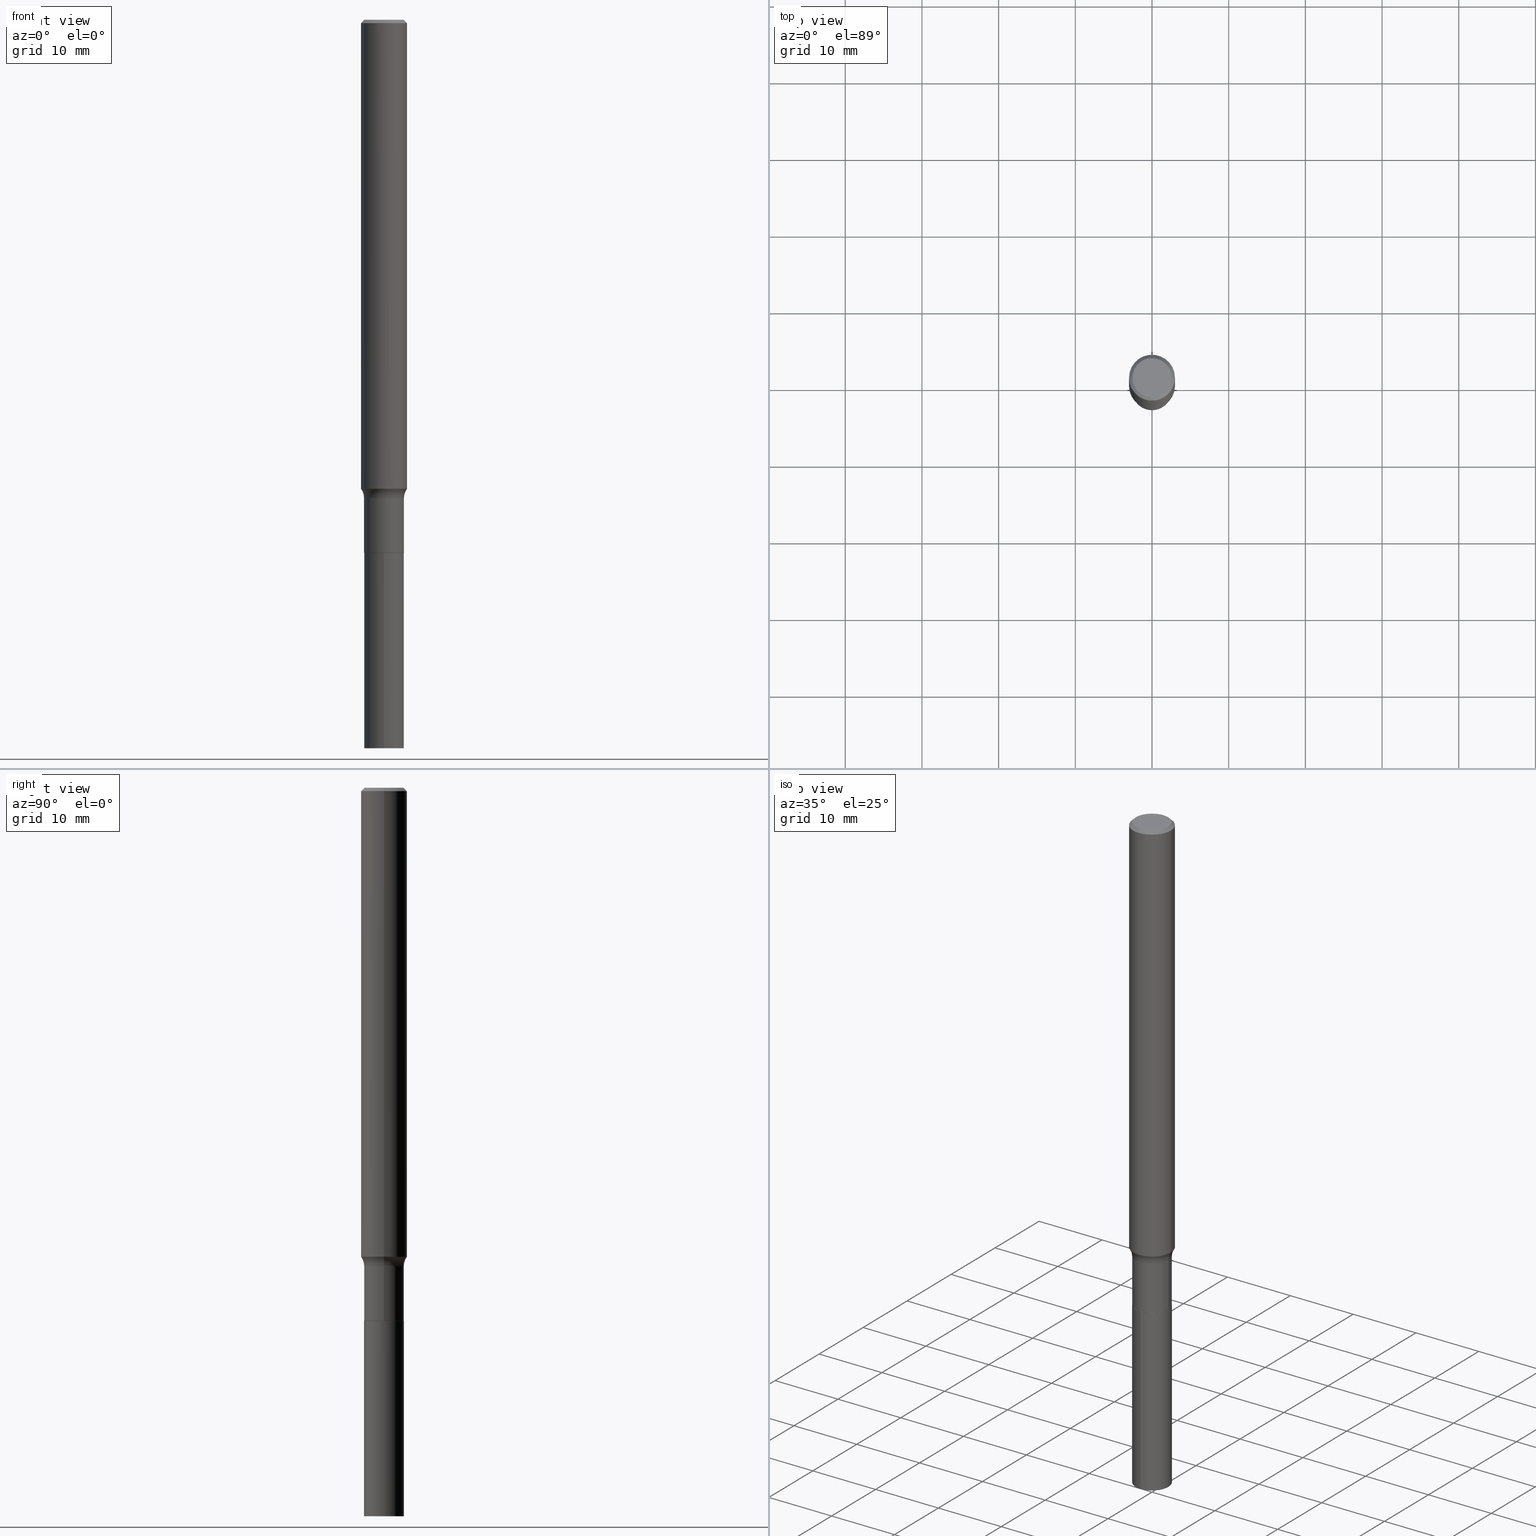
[diagram: canonical four-view strip — front | top / right | iso, engineering-drawing reading convention]
A machine part, canonical four-view strip (front | top / right | iso — engineering-drawing reading convention). The complete STEP part file that produces these views, byte-faithful:
ISO-10303-21;
HEADER;
FILE_DESCRIPTION (( 'STEP AP203' ),
    '1' );
FILE_NAME ('67838.STEP',
    '2024-04-19T16:38:54',
    ( '' ),
    ( '' ),
    'SwSTEP 2.0',
    'SolidWorks 2023',
    '' );
FILE_SCHEMA (( 'CONFIG_CONTROL_DESIGN' ));
ENDSEC;

DATA;
#1 = ORIENTED_EDGE ( 'NONE', *, *, #144, .F. ) ;
#2 = DIRECTION ( 'NONE',  ( 1.000000000000000000, -6.982962677686264344E-15, 4.883557194083111780E-29 ) ) ;
#3 = ORIENTED_EDGE ( 'NONE', *, *, #331, .F. ) ;
#4 = APPROVAL_PERSON_ORGANIZATION ( #448, #68, #65 ) ;
#5 = AXIS2_PLACEMENT_3D ( 'NONE', #61, #283, #91 ) ;
#6 = CONICAL_SURFACE ( 'NONE', #377, 0.1018499999999999961, 0.7853981633972775267 ) ;
#7 = CARTESIAN_POINT ( 'NONE',  ( -0.1181000000000001632, 8.391509709326794790E-16, -5.809262341591051491E-30 ) ) ;
#8 = ORIENTED_EDGE ( 'NONE', *, *, #239, .F. ) ;
#9 = DIRECTION ( 'NONE',  ( -6.982962677686266711E-15, -1.000000000000000000, 3.491481338843145583E-15 ) ) ;
#10 = ORIENTED_EDGE ( 'NONE', *, *, #106, .T. ) ;
#11 = EDGE_CURVE ( 'NONE', #125, #241, #262, .T. ) ;
#12 = COORDINATED_UNIVERSAL_TIME_OFFSET ( 5, 0, .BEHIND. ) ;
#13 = FACE_OUTER_BOUND ( 'NONE', #187, .T. ) ;
#14 = AXIS2_PLACEMENT_3D ( 'NONE', #129, #162, #308 ) ;
#15 = DATE_AND_TIME ( #135, #404 ) ;
#16 = FACE_OUTER_BOUND ( 'NONE', #48, .T. ) ;
#17 = SECURITY_CLASSIFICATION_LEVEL ( 'unclassified' ) ;
#18 = CARTESIAN_POINT ( 'NONE',  ( 0.1023499999999999688, -9.288038657590533619E-15, -2.455500000000000238 ) ) ;
#19 = EDGE_CURVE ( 'NONE', #412, #78, #111, .T. ) ;
#20 = DIRECTION ( 'NONE',  ( -6.982962677686265922E-15, -1.000000000000000000, 5.338247178630704739E-15 ) ) ;
#21 = ORIENTED_EDGE ( 'NONE', *, *, #144, .T. ) ;
#22 = AXIS2_PLACEMENT_3D ( 'NONE', #218, #182, #209 ) ;
#23 = CARTESIAN_POINT ( 'NONE',  ( 0.1023499999999999965, -1.026635172873438366E-14, -2.735700000000000021 ) ) ;
#24 = ORIENTED_EDGE ( 'NONE', *, *, #193, .T. ) ;
#25 = DIRECTION ( 'NONE',  ( 1.000000000000000000, -6.982962677686270655E-15, 0.000000000000000000 ) ) ;
#26 = DIRECTION ( 'NONE',  ( -2.445468806185136597E-29, 3.491481338843145583E-15, 1.000000000000000000 ) ) ;
#27 = CYLINDRICAL_SURFACE ( 'NONE', #84, 0.1181000000000001632 ) ;
#28 = VECTOR ( 'NONE', #232, 39.37007874015748143 ) ;
#29 = CARTESIAN_POINT ( 'NONE',  ( 0.000000000000000000, 0.000000000000000000, 0.000000000000000000 ) ) ;
#30 = EDGE_CURVE ( 'NONE', #364, #227, #327, .T. ) ;
#31 = CARTESIAN_POINT ( 'NONE',  ( -7.147062300611223431E-16, -0.1023500000000095583, -2.736199999999999743 ) ) ;
#32 = ORIENTED_EDGE ( 'NONE', *, *, #19, .T. ) ;
#33 = CC_DESIGN_DATE_AND_TIME_ASSIGNMENT ( #15, #282, ( #340 ) ) ;
#34 = DIRECTION ( 'NONE',  ( 1.000000000000000000, -6.982962677686261977E-15, 0.000000000000000000 ) ) ;
#35 = VECTOR ( 'NONE', #200, 39.37007874015748143 ) ;
#36 = ADVANCED_FACE ( 'NONE', ( #442 ), #220, .F. ) ;
#37 = CARTESIAN_POINT ( 'NONE',  ( -0.1180999999999999966, 7.628363003171413738E-16, -0.01771500000000010219 ) ) ;
#38 = EDGE_CURVE ( 'NONE', #105, #101, #296, .T. ) ;
#39 = DIRECTION ( 'NONE',  ( 0.7071067811865456854, -7.319954787623249734E-15, -0.7071067811865493491 ) ) ;
#40 = ORIENTED_EDGE ( 'NONE', *, *, #215, .F. ) ;
#41 = DIRECTION ( 'NONE',  ( -2.445468806185136597E-29, 3.491481338843145583E-15, 1.000000000000000000 ) ) ;
#42 = AXIS2_PLACEMENT_3D ( 'NONE', #260, #9, #299 ) ;
#43 = ADVANCED_FACE ( 'NONE', ( #13 ), #219, .T. ) ;
#44 = ORIENTED_EDGE ( 'NONE', *, *, #286, .T. ) ;
#45 = CIRCLE ( 'NONE', #171, 0.1181000000000003158 ) ;
#46 = AXIS2_PLACEMENT_3D ( 'NONE', #288, #426, #145 ) ;
#47 = CARTESIAN_POINT ( 'NONE',  ( -7.147062300610980856E-16, -0.1023500000000130833, -3.740200000000000191 ) ) ;
#48 = EDGE_LOOP ( 'NONE', ( #143, #336, #223, #360 ) ) ;
#49 = CC_DESIGN_PERSON_AND_ORGANIZATION_ASSIGNMENT ( #60, #378, ( #312 ) ) ;
#50 = VERTEX_POINT ( 'NONE', #80 ) ;
#51 = ORIENTED_EDGE ( 'NONE', *, *, #290, .F. ) ;
#52 = CARTESIAN_POINT ( 'NONE',  ( 4.332147990156994992E-31, -6.185159191760669162E-17, -0.01771500000000010219 ) ) ;
#53 = ORIENTED_EDGE ( 'NONE', *, *, #249, .F. ) ;
#54 = AXIS2_PLACEMENT_3D ( 'NONE', #107, #465, #250 ) ;
#55 = AXIS2_PLACEMENT_3D ( 'NONE', #275, #240, #379 ) ;
#56 = EDGE_CURVE ( 'NONE', #140, #403, #152, .T. ) ;
#57 = DIRECTION ( 'NONE',  ( 1.000000000000000000, -6.982962677686274599E-15, 0.000000000000000000 ) ) ;
#58 = DIRECTION ( 'NONE',  ( -2.445468806185136597E-29, 3.491481338843145583E-15, 1.000000000000000000 ) ) ;
#59 = ADVANCED_FACE ( 'NONE', ( #225 ), #358, .F. ) ;
#60 = PERSON_AND_ORGANIZATION ( #256, #365 ) ;
#61 = CARTESIAN_POINT ( 'NONE',  ( 6.004848653587603460E-29, -8.573332427529345603E-15, -2.455500000000000238 ) ) ;
#62 = ORIENTED_EDGE ( 'NONE', *, *, #130, .T. ) ;
#63 = EDGE_CURVE ( 'NONE', #364, #140, #366, .T. ) ;
#64 = LOCAL_TIME ( 12, 38, 54.00000000000000000, #458 ) ;
#65 = APPROVAL_ROLE ( '' ) ;
#66 = AXIS2_PLACEMENT_3D ( 'NONE', #272, #100, #316 ) ;
#67 = DIRECTION ( 'NONE',  ( 2.445468806185136597E-29, -3.491481338843145583E-15, -1.000000000000000000 ) ) ;
#68 = APPROVAL ( #95, 'UNSPECIFIED' ) ;
#69 = DIRECTION ( 'NONE',  ( 1.000000000000000000, -6.982962677686267499E-15, 4.876176775795936353E-29 ) ) ;
#70 = CARTESIAN_POINT ( 'NONE',  ( -0.1180999999999999966, -3.395230579436365239E-15, -0.01771500000000010219 ) ) ;
#71 = ORIENTED_EDGE ( 'NONE', *, *, #294, .T. ) ;
#72 = CARTESIAN_POINT ( 'NONE',  ( 7.272404900505293716E-16, 0.1023499999999904347, -2.736200000000000632 ) ) ;
#73 = EDGE_CURVE ( 'NONE', #396, #403, #189, .T. ) ;
#74 = FACE_OUTER_BOUND ( 'NONE', #90, .T. ) ;
#75 = CARTESIAN_POINT ( 'NONE',  ( 7.015701749847187307E-46, -1.001656274515824970E-31, -2.868857591682589212E-17 ) ) ;
#76 = CARTESIAN_POINT ( 'NONE',  ( 0.000000000000000000, 0.000000000000000000, 0.000000000000000000 ) ) ;
#77 = DIRECTION ( 'NONE',  ( -2.438872900097953269E-29, 3.500927051775652151E-15, 1.000000000000000000 ) ) ;
#78 = VERTEX_POINT ( 'NONE', #47 ) ;
#79 = APPROVAL_STATUS ( 'not_yet_approved' ) ;
#80 = CARTESIAN_POINT ( 'NONE',  ( 0.1018499999999999961, -1.026460598806496295E-14, -2.736200000000000188 ) ) ;
#81 = APPROVAL_ROLE ( '' ) ;
#82 = DIRECTION ( 'NONE',  ( -2.445468806185136877E-29, 3.491481338843145188E-15, 1.000000000000000000 ) ) ;
#83 = TOROIDAL_SURFACE ( 'NONE', #278, 0.1823499999999999566, 0.08000000000000002942 ) ;
#84 = AXIS2_PLACEMENT_3D ( 'NONE', #257, #428, #69 ) ;
#85 = DATE_AND_TIME ( #268, #173 ) ;
#86 = CARTESIAN_POINT ( 'NONE',  ( 9.139920139182118548E-29, -1.306832199932537301E-14, -3.740200000000000635 ) ) ;
#87 = PERSON_AND_ORGANIZATION ( #256, #365 ) ;
#88 = DIRECTION ( 'NONE',  ( -1.000000000000000000, 6.982962677686266711E-15, 0.000000000000000000 ) ) ;
#89 = APPLICATION_CONTEXT ( 'configuration controlled 3d designs of mechanical parts and assemblies' ) ;
#90 = EDGE_LOOP ( 'NONE', ( #334, #8, #246, #21 ) ) ;
#91 = DIRECTION ( 'NONE',  ( 1.000000000000000000, -6.982962677686262766E-15, 0.000000000000000000 ) ) ;
#92 = CIRCLE ( 'NONE', #5, 0.1023499999999999688 ) ;
#93 = CARTESIAN_POINT ( 'NONE',  ( 5.888285760676931811E-29, -8.406911508820488562E-15, -2.407835154463693339 ) ) ;
#94 = ORIENTED_EDGE ( 'NONE', *, *, #407, .F. ) ;
#95 = APPROVAL_STATUS ( 'not_yet_approved' ) ;
#96 = DIRECTION ( 'NONE',  ( -2.445468806185136877E-29, 3.491481338843145188E-15, 1.000000000000000000 ) ) ;
#97 = ADVANCED_FACE ( 'NONE', ( #120 ), #344, .T. ) ;
#98 = EDGE_LOOP ( 'NONE', ( #284, #32, #24, #40 ) ) ;
#99 = PRODUCT_DEFINITION_SHAPE ( 'NONE', 'NONE',  #340 ) ;
#100 = DIRECTION ( 'NONE',  ( -2.445468806185136597E-29, 3.491481338843145583E-15, 1.000000000000000000 ) ) ;
#101 = VERTEX_POINT ( 'NONE', #421 ) ;
#102 = AXIS2_PLACEMENT_3D ( 'NONE', #174, #58, #57 ) ;
#103 = CARTESIAN_POINT ( 'NONE',  ( 0.1003850000000000159, -7.803837484803599345E-16, -2.868857591682071522E-17 ) ) ;
#104 = LINE ( 'NONE', #139, #206 ) ;
#105 = VERTEX_POINT ( 'NONE', #234 ) ;
#106 = EDGE_CURVE ( 'NONE', #105, #125, #318, .T. ) ;
#107 = CARTESIAN_POINT ( 'NONE',  ( 9.139920139182118548E-29, -1.306832199932537301E-14, -3.740200000000000635 ) ) ;
#108 = AXIS2_PLACEMENT_3D ( 'NONE', #441, #468, #295 ) ;
#109 = PRODUCT_RELATED_PRODUCT_CATEGORY ( 'detail', '', ( #210 ) ) ;
#110 = CYLINDRICAL_SURFACE ( 'NONE', #349, 0.1181000000000001632 ) ;
#111 = CIRCLE ( 'NONE', #462, 0.1023500000000000243 ) ;
#112 = CIRCLE ( 'NONE', #42, 0.08000000000000002942 ) ;
#113 = DIRECTION ( 'NONE',  ( -2.438872900097953269E-29, 3.500927051775652151E-15, 1.000000000000000000 ) ) ;
#114 = CARTESIAN_POINT ( 'NONE',  ( 0.1180999999999999966, -8.720764054544245267E-16, -0.01771500000000010219 ) ) ;
#115 = VECTOR ( 'NONE', #157, 39.37007874015748143 ) ;
#116 = PERSON_AND_ORGANIZATION_ROLE ( 'design_owner' ) ;
#117 = ORIENTED_EDGE ( 'NONE', *, *, #193, .F. ) ;
#118 = EDGE_CURVE ( 'NONE', #158, #105, #411, .T. ) ;
#119 = LENGTH_MEASURE_WITH_UNIT ( LENGTH_MEASURE( 0.02539999999999999897 ), #436 );
#120 = FACE_OUTER_BOUND ( 'NONE', #394, .T. ) ;
#121 = ORIENTED_EDGE ( 'NONE', *, *, #118, .F. ) ;
#122 = CC_DESIGN_PERSON_AND_ORGANIZATION_ASSIGNMENT ( #87, #417, ( #340 ) ) ;
#123 = VERTEX_POINT ( 'NONE', #313 ) ;
#124 = CIRCLE ( 'NONE', #453, 0.08000000000000002942 ) ;
#125 = VERTEX_POINT ( 'NONE', #23 ) ;
#126 = EDGE_CURVE ( 'NONE', #125, #105, #190, .T. ) ;
#127 = EDGE_LOOP ( 'NONE', ( #51, #385 ) ) ;
#128 = SHAPE_DEFINITION_REPRESENTATION ( #99, #172 ) ;
#129 = CARTESIAN_POINT ( 'NONE',  ( 4.332147990156994992E-31, -6.185159191760669162E-17, -0.01771500000000010219 ) ) ;
#130 = EDGE_CURVE ( 'NONE', #307, #227, #416, .T. ) ;
#131 = CARTESIAN_POINT ( 'NONE',  ( 6.690069013080677573E-29, -9.551645498673194068E-15, -2.735700000000000021 ) ) ;
#132 = EDGE_LOOP ( 'NONE', ( #330, #10, #235, #94 ) ) ;
#133 = UNCERTAINTY_MEASURE_WITH_UNIT (LENGTH_MEASURE( 1.000000000000000082E-05 ), #361, 'distance_accuracy_value', 'NONE');
#134 = AXIS2_PLACEMENT_3D ( 'NONE', #451, #136, #459 ) ;
#135 = CALENDAR_DATE ( 2024, 19, 4 ) ;
#136 = DIRECTION ( 'NONE',  ( 2.438872900097952989E-29, -3.500927051775652151E-15, -1.000000000000000000 ) ) ;
#137 = CALENDAR_DATE ( 2024, 19, 4 ) ;
#138 = CARTESIAN_POINT ( 'NONE',  ( 0.1181000000000001632, -8.246878922347493473E-16, 5.758764772215008848E-30 ) ) ;
#139 = CARTESIAN_POINT ( 'NONE',  ( 0.1018499999999999961, -1.026460598806496295E-14, -2.736200000000000188 ) ) ;
#140 = VERTEX_POINT ( 'NONE', #456 ) ;
#141 = AXIS2_PLACEMENT_3D ( 'NONE', #362, #373, #449 ) ;
#142 = CYLINDRICAL_SURFACE ( 'NONE', #46, 0.1023499999999999827 ) ;
#143 = ORIENTED_EDGE ( 'NONE', *, *, #30, .F. ) ;
#144 = EDGE_CURVE ( 'NONE', #241, #101, #92, .T. ) ;
#145 = DIRECTION ( 'NONE',  ( 1.000000000000000000, -6.982962677686266711E-15, 4.876176775795936353E-29 ) ) ;
#146 = APPROVAL ( #79, 'UNSPECIFIED' ) ;
#147 = FACE_OUTER_BOUND ( 'NONE', #192, .T. ) ;
#148 = CC_DESIGN_APPROVAL ( #146, ( #340 ) ) ;
#149 = DIRECTION ( 'NONE',  ( 7.105427357601001859E-15, 1.000000000000000000, -3.491481338843145583E-15 ) ) ;
#150 = EDGE_LOOP ( 'NONE', ( #251, #71, #62, #266 ) ) ;
#151 = LOCAL_TIME ( 12, 38, 54.00000000000000000, #236 ) ;
#152 = LINE ( 'NONE', #37, #28 ) ;
#153 = AXIS2_PLACEMENT_3D ( 'NONE', #305, #333, #265 ) ;
#154 = EDGE_CURVE ( 'NONE', #50, #158, #314, .T. ) ;
#155 = ORIENTED_EDGE ( 'NONE', *, *, #154, .F. ) ;
#156 = EDGE_LOOP ( 'NONE', ( #447, #166, #463, #184 ) ) ;
#157 = DIRECTION ( 'NONE',  ( -2.445468806185136877E-29, 3.491481338843145188E-15, 1.000000000000000000 ) ) ;
#158 = VERTEX_POINT ( 'NONE', #338 ) ;
#159 = APPROVAL_DATE_TIME ( #335, #68 ) ;
#160 = CARTESIAN_POINT ( 'NONE',  ( 0.1023499999999999827, -7.147062300611892976E-16, 4.990766930027139796E-30 ) ) ;
#161 = CONICAL_SURFACE ( 'NONE', #375, 0.1180999999999999966, 0.7853981633974457255 ) ;
#162 = DIRECTION ( 'NONE',  ( -2.445468806185136597E-29, 3.491481338843145583E-15, 1.000000000000000000 ) ) ;
#163 = CC_DESIGN_PERSON_AND_ORGANIZATION_ASSIGNMENT ( #439, #116, ( #210 ) ) ;
#164 = DATE_AND_TIME ( #137, #151 ) ;
#165 = DIRECTION ( 'NONE',  ( -6.982962677686265922E-15, -1.000000000000000000, 5.338247178630704739E-15 ) ) ;
#166 = ORIENTED_EDGE ( 'NONE', *, *, #363, .T. ) ;
#167 = APPROVAL_DATE_TIME ( #164, #410 ) ;
#168 = DIRECTION ( 'NONE',  ( 2.445468806185136597E-29, -3.491481338843145583E-15, -1.000000000000000000 ) ) ;
#169 = EDGE_LOOP ( 'NONE', ( #359, #371 ) ) ;
#170 = VECTOR ( 'NONE', #113, 39.37007874015748143 ) ;
#171 = AXIS2_PLACEMENT_3D ( 'NONE', #423, #432, #34 ) ;
#172 = ADVANCED_BREP_SHAPE_REPRESENTATION ( '67838', ( #201, #433, #343 ), #368 ) ;
#173 = LOCAL_TIME ( 12, 38, 54.00000000000000000, #444 ) ;
#174 = CARTESIAN_POINT ( 'NONE',  ( 6.691291747483770374E-29, -9.553391239342616361E-15, -2.736200000000000188 ) ) ;
#175 = FACE_OUTER_BOUND ( 'NONE', #208, .T. ) ;
#176 = DIRECTION ( 'NONE',  ( 1.000000000000000000, -6.982962677686266711E-15, 4.875668750515085695E-29 ) ) ;
#177 = AXIS2_PLACEMENT_3D ( 'NONE', #52, #168, #342 ) ;
#178 = CC_DESIGN_SECURITY_CLASSIFICATION ( #267, ( #312 ) ) ;
#179 = DIRECTION ( 'NONE',  ( -2.445468806185136597E-29, 3.491481338843145583E-15, 1.000000000000000000 ) ) ;
#180 = PLANE ( 'NONE',  #293 ) ;
#181 = ORIENTED_EDGE ( 'NONE', *, *, #118, .T. ) ;
#182 = DIRECTION ( 'NONE',  ( -2.445468806185136597E-29, 3.491481338843145583E-15, 1.000000000000000000 ) ) ;
#183 = VECTOR ( 'NONE', #82, 39.37007874015748143 ) ;
#184 = ORIENTED_EDGE ( 'NONE', *, *, #434, .F. ) ;
#185 = CARTESIAN_POINT ( 'NONE',  ( -0.1023499999999999827, 7.272404900504624170E-16, -5.034530064875895945E-30 ) ) ;
#186 = ADVANCED_FACE ( 'NONE', ( #175 ), #271, .F. ) ;
#187 = EDGE_LOOP ( 'NONE', ( #263, #181, #354, #3 ) ) ;
#188 = MECHANICAL_CONTEXT ( 'NONE', #89, 'mechanical' ) ;
#189 = LINE ( 'NONE', #7, #351 ) ;
#190 = CIRCLE ( 'NONE', #405, 0.1023499999999999965 ) ;
#191 = ORIENTED_EDGE ( 'NONE', *, *, #331, .T. ) ;
#192 = EDGE_LOOP ( 'NONE', ( #302, #196, #1, #226 ) ) ;
#193 = EDGE_CURVE ( 'NONE', #78, #303, #409, .T. ) ;
#194 = DIRECTION ( 'NONE',  ( 0.000000000000000000, 0.000000000000000000, 1.000000000000000000 ) ) ;
#195 = DIRECTION ( 'NONE',  ( 1.000000000000000000, -6.982962677686274599E-15, 0.000000000000000000 ) ) ;
#196 = ORIENTED_EDGE ( 'NONE', *, *, #38, .T. ) ;
#197 = FACE_OUTER_BOUND ( 'NONE', #98, .T. ) ;
#198 = ORIENTED_EDGE ( 'NONE', *, *, #445, .F. ) ;
#199 = AXIS2_PLACEMENT_3D ( 'NONE', #93, #280, #376 ) ;
#200 = DIRECTION ( 'NONE',  ( -2.438872900097953269E-29, 3.500927051775652151E-15, 1.000000000000000000 ) ) ;
#201 = MANIFOLD_SOLID_BREP ( 'Body-Move/Copy2[1]', #261 ) ;
#202 = CARTESIAN_POINT ( 'NONE',  ( 6.691291747483770374E-29, -9.553391239342616361E-15, -2.736200000000000188 ) ) ;
#203 = APPROVAL_ROLE ( '' ) ;
#204 = FACE_OUTER_BOUND ( 'NONE', #150, .T. ) ;
#205 = ORIENTED_EDGE ( 'NONE', *, *, #445, .T. ) ;
#206 = VECTOR ( 'NONE', #461, 39.37007874015748143 ) ;
#207 = DIRECTION ( 'NONE',  ( -2.438872900097953269E-29, 3.500927051775652151E-15, 1.000000000000000000 ) ) ;
#208 = EDGE_LOOP ( 'NONE', ( #391, #281 ) ) ;
#209 = DIRECTION ( 'NONE',  ( 1.000000000000000000, -6.982962677686274599E-15, 0.000000000000000000 ) ) ;
#210 = PRODUCT ( '67838', '67838', '', ( #188 ) ) ;
#211 = DIRECTION ( 'NONE',  ( -2.445468806185136597E-29, 3.491481338843145583E-15, 1.000000000000000000 ) ) ;
#212 = EDGE_LOOP ( 'NONE', ( #155, #298 ) ) ;
#213 = CC_DESIGN_APPROVAL ( #68, ( #312 ) ) ;
#214 = CARTESIAN_POINT ( 'NONE',  ( 6.004848653587603460E-29, -8.573332427529345603E-15, -2.455500000000000238 ) ) ;
#215 = EDGE_CURVE ( 'NONE', #123, #303, #306, .T. ) ;
#216 = APPLICATION_CONTEXT ( 'configuration controlled 3d designs of mechanical parts and assemblies' ) ;
#217 = ADVANCED_FACE ( 'NONE', ( #16 ), #161, .T. ) ;
#218 = CARTESIAN_POINT ( 'NONE',  ( 6.691291747483770374E-29, -9.553391239342616361E-15, -2.736200000000000188 ) ) ;
#219 = CONICAL_SURFACE ( 'NONE', #415, 0.1018499999999999961, 0.7853981633972775267 ) ;
#220 = PLANE ( 'NONE',  #153 ) ;
#221 = ADVANCED_FACE ( 'NONE', ( #197 ), #452, .T. ) ;
#222 = APPLICATION_PROTOCOL_DEFINITION ( 'international standard', 'config_control_design', 1994, #89 ) ;
#223 = ORIENTED_EDGE ( 'NONE', *, *, #56, .T. ) ;
#224 = ORIENTED_EDGE ( 'NONE', *, *, #56, .F. ) ;
#225 = FACE_OUTER_BOUND ( 'NONE', #169, .T. ) ;
#226 = ORIENTED_EDGE ( 'NONE', *, *, #11, .F. ) ;
#227 = VERTEX_POINT ( 'NONE', #237 ) ;
#228 = AXIS2_PLACEMENT_3D ( 'NONE', #325, #291, #285 ) ;
#229 = ADVANCED_FACE ( 'NONE', ( #310 ), #287, .T. ) ;
#230 = ORIENTED_EDGE ( 'NONE', *, *, #30, .T. ) ;
#231 = DIRECTION ( 'NONE',  ( -2.445468806185136597E-29, 3.491481338843145583E-15, 1.000000000000000000 ) ) ;
#232 = DIRECTION ( 'NONE',  ( -0.7071067811865456854, 2.468850131082237733E-15, -0.7071067811865493491 ) ) ;
#233 = EDGE_CURVE ( 'NONE', #403, #227, #389, .T. ) ;
#234 = CARTESIAN_POINT ( 'NONE',  ( -0.1023499999999999965, -8.335248473050806926E-15, -2.735700000000000021 ) ) ;
#235 = ORIENTED_EDGE ( 'NONE', *, *, #11, .T. ) ;
#236 = COORDINATED_UNIVERSAL_TIME_OFFSET ( 5, 0, .BEHIND. ) ;
#237 = CARTESIAN_POINT ( 'NONE',  ( 0.1180999999999999966, -8.865394841523547570E-16, -0.01771500000000010219 ) ) ;
#238 = AXIS2_PLACEMENT_3D ( 'NONE', #214, #211, #348 ) ;
#239 = EDGE_CURVE ( 'NONE', #307, #396, #395, .T. ) ;
#240 = DIRECTION ( 'NONE',  ( -2.438872900097953269E-29, 3.500927051775652151E-15, 1.000000000000000000 ) ) ;
#241 = VERTEX_POINT ( 'NONE', #18 ) ;
#242 = CALENDAR_DATE ( 2024, 19, 4 ) ;
#243 = CARTESIAN_POINT ( 'NONE',  ( 6.691291747483770374E-29, -9.553391239342616361E-15, -2.736200000000000188 ) ) ;
#244 = DATE_AND_TIME ( #242, #64 ) ;
#245 = CARTESIAN_POINT ( 'NONE',  ( -7.147062300611223431E-16, -0.1023500000000095583, -2.736199999999999743 ) ) ;
#246 = ORIENTED_EDGE ( 'NONE', *, *, #434, .T. ) ;
#247 = AXIS2_PLACEMENT_3D ( 'NONE', #202, #315, #419 ) ;
#248 = CARTESIAN_POINT ( 'NONE',  ( -0.1181000000000003436, -7.567760537887806421E-15, -2.407835154463693339 ) ) ;
#249 = EDGE_CURVE ( 'NONE', #303, #123, #455, .T. ) ;
#250 = DIRECTION ( 'NONE',  ( -6.982962677686265133E-15, -1.000000000000000000, 5.338247178630703951E-15 ) ) ;
#251 = ORIENTED_EDGE ( 'NONE', *, *, #73, .F. ) ;
#252 = CARTESIAN_POINT ( 'NONE',  ( 7.272404900505416975E-16, 0.1023499999999869514, -3.740200000000001079 ) ) ;
#253 = CIRCLE ( 'NONE', #54, 0.1023500000000000243 ) ;
#254 = CARTESIAN_POINT ( 'NONE',  ( 7.015701749847187307E-46, -1.001656274515824970E-31, -2.868857591682589212E-17 ) ) ;
#255 = ADVANCED_FACE ( 'NONE', ( #204 ), #27, .T. ) ;
#256 = PERSON ( 'UNSPECIFIED', 'UNSPECIFIED', 'UNSPECIFIED', ('UNSPECIFIED'), ('UNSPECIFIED'), ('UNSPECIFIED') ) ;
#257 = CARTESIAN_POINT ( 'NONE',  ( 0.000000000000000000, 0.000000000000000000, 0.000000000000000000 ) ) ;
#258 =( NAMED_UNIT ( * ) SI_UNIT ( $, .STERADIAN. ) SOLID_ANGLE_UNIT ( ) );
#259 = CIRCLE ( 'NONE', #22, 0.1018499999999999961 ) ;
#260 = CARTESIAN_POINT ( 'NONE',  ( 0.1823499999999999566, -9.846675671805436849E-15, -2.455500000000000682 ) ) ;
#261 = CLOSED_SHELL ( 'NONE', ( #97, #36, #221, #186 ) ) ;
#262 = LINE ( 'NONE', #160, #183 ) ;
#263 = ORIENTED_EDGE ( 'NONE', *, *, #154, .T. ) ;
#264 = FACE_OUTER_BOUND ( 'NONE', #156, .T. ) ;
#265 = DIRECTION ( 'NONE',  ( -6.982962677686265922E-15, -1.000000000000000000, 3.500927051775652151E-15 ) ) ;
#266 = ORIENTED_EDGE ( 'NONE', *, *, #233, .F. ) ;
#267 = SECURITY_CLASSIFICATION ( '', '', #17 ) ;
#268 = CALENDAR_DATE ( 2024, 19, 4 ) ;
#269 = EDGE_LOOP ( 'NONE', ( #301, #443, #198, #446 ) ) ;
#270 = AXIS2_PLACEMENT_3D ( 'NONE', #75, #41, #437 ) ;
#271 = PLANE ( 'NONE',  #134 ) ;
#272 = CARTESIAN_POINT ( 'NONE',  ( 6.690069013080677573E-29, -9.551645498673194068E-15, -2.735700000000000021 ) ) ;
#273 = EDGE_CURVE ( 'NONE', #140, #364, #276, .T. ) ;
#274 = APPROVAL_PERSON_ORGANIZATION ( #380, #410, #203 ) ;
#275 = CARTESIAN_POINT ( 'NONE',  ( 6.691291747483770374E-29, -9.553391239342616361E-15, -2.736200000000000188 ) ) ;
#276 = CIRCLE ( 'NONE', #297, 0.1003850000000000159 ) ;
#277 = DIMENSIONAL_EXPONENTS ( 1.000000000000000000, 0.000000000000000000, 0.000000000000000000, 0.000000000000000000, 0.000000000000000000, 0.000000000000000000, 0.000000000000000000 ) ;
#278 = AXIS2_PLACEMENT_3D ( 'NONE', #435, #332, #2 ) ;
#279 = PERSON_AND_ORGANIZATION ( #256, #365 ) ;
#280 = DIRECTION ( 'NONE',  ( -2.445468806185136597E-29, 3.491481338843145583E-15, 1.000000000000000000 ) ) ;
#281 = ORIENTED_EDGE ( 'NONE', *, *, #215, .T. ) ;
#282 = DATE_TIME_ROLE ( 'creation_date' ) ;
#283 = DIRECTION ( 'NONE',  ( -2.445468806185136597E-29, 3.491481338843145583E-15, 1.000000000000000000 ) ) ;
#284 = ORIENTED_EDGE ( 'NONE', *, *, #386, .F. ) ;
#285 = DIRECTION ( 'NONE',  ( 1.000000000000000000, -6.982962677686264344E-15, 4.883557194083111780E-29 ) ) ;
#286 = EDGE_CURVE ( 'NONE', #158, #50, #259, .T. ) ;
#287 = CONICAL_SURFACE ( 'NONE', #177, 0.1180999999999999966, 0.7853981633974457255 ) ;
#288 = CARTESIAN_POINT ( 'NONE',  ( 0.000000000000000000, 0.000000000000000000, 0.000000000000000000 ) ) ;
#289 = CARTESIAN_POINT ( 'NONE',  ( 6.691291747483770374E-29, -9.553391239342616361E-15, -2.736200000000000188 ) ) ;
#290 = EDGE_CURVE ( 'NONE', #78, #412, #253, .T. ) ;
#291 = DIRECTION ( 'NONE',  ( -2.445468806185136597E-29, 3.491481338843145583E-15, 1.000000000000000000 ) ) ;
#292 = AXIS2_PLACEMENT_3D ( 'NONE', #326, #231, #393 ) ;
#293 = AXIS2_PLACEMENT_3D ( 'NONE', #464, #321, #388 ) ;
#294 = EDGE_CURVE ( 'NONE', #396, #307, #45, .T. ) ;
#295 = DIRECTION ( 'NONE',  ( 1.000000000000000000, -6.982962677686266711E-15, 0.000000000000000000 ) ) ;
#296 = LINE ( 'NONE', #185, #115 ) ;
#297 = AXIS2_PLACEMENT_3D ( 'NONE', #254, #353, #176 ) ;
#298 = ORIENTED_EDGE ( 'NONE', *, *, #286, .F. ) ;
#299 = DIRECTION ( 'NONE',  ( 1.000000000000000000, -6.982962677686257244E-15, 0.000000000000000000 ) ) ;
#300 = DIRECTION ( 'NONE',  ( -2.445468806185136877E-29, 3.491481338843145188E-15, 1.000000000000000000 ) ) ;
#301 = ORIENTED_EDGE ( 'NONE', *, *, #239, .T. ) ;
#302 = ORIENTED_EDGE ( 'NONE', *, *, #126, .T. ) ;
#303 = VERTEX_POINT ( 'NONE', #31 ) ;
#304 = APPROVAL_STATUS ( 'not_yet_approved' ) ;
#305 = CARTESIAN_POINT ( 'NONE',  ( -4.795719130650792387E-29, -3.302495060105569728E-14, -3.740200000000000635 ) ) ;
#306 = CIRCLE ( 'NONE', #323, 0.1023499999999999965 ) ;
#307 = VERTEX_POINT ( 'NONE', #347 ) ;
#308 = DIRECTION ( 'NONE',  ( 1.000000000000000000, -6.982962677686266711E-15, 0.000000000000000000 ) ) ;
#309 = ADVANCED_FACE ( 'NONE', ( #74 ), #430, .F. ) ;
#310 = FACE_OUTER_BOUND ( 'NONE', #350, .T. ) ;
#311 = CC_DESIGN_PERSON_AND_ORGANIZATION_ASSIGNMENT ( #414, #454, ( #267 ) ) ;
#312 = PRODUCT_DEFINITION_FORMATION_WITH_SPECIFIED_SOURCE ( 'ANY', '', #210, .NOT_KNOWN. ) ;
#313 = CARTESIAN_POINT ( 'NONE',  ( 7.272404900505540235E-16, 0.1023499999999904347, -2.736200000000000632 ) ) ;
#314 = CIRCLE ( 'NONE', #102, 0.1018499999999999961 ) ;
#315 = DIRECTION ( 'NONE',  ( -2.438872900097953269E-29, 3.500927051775652151E-15, 1.000000000000000000 ) ) ;
#316 = DIRECTION ( 'NONE',  ( 1.000000000000000000, -6.982962677686270655E-15, 0.000000000000000000 ) ) ;
#317 = FACE_OUTER_BOUND ( 'NONE', #132, .T. ) ;
#318 = CIRCLE ( 'NONE', #66, 0.1023499999999999965 ) ;
#319 = CARTESIAN_POINT ( 'NONE',  ( -0.1823499999999999566, -7.277657748870802828E-15, -2.455500000000000682 ) ) ;
#320 = DIRECTION ( 'NONE',  ( 1.000000000000000000, -6.982962677686267499E-15, 4.876176775795936353E-29 ) ) ;
#321 = DIRECTION ( 'NONE',  ( -2.438088387897960049E-29, 3.491481338843145188E-15, 1.000000000000000000 ) ) ;
#322 = CC_DESIGN_APPROVAL ( #410, ( #267 ) ) ;
#323 = AXIS2_PLACEMENT_3D ( 'NONE', #243, #339, #20 ) ;
#324 = ADVANCED_FACE ( 'NONE', ( #392 ), #180, .F. ) ;
#325 = CARTESIAN_POINT ( 'NONE',  ( 6.004848653587604581E-29, -8.573332427529345603E-15, -2.455500000000000682 ) ) ;
#326 = CARTESIAN_POINT ( 'NONE',  ( 0.000000000000000000, 0.000000000000000000, 0.000000000000000000 ) ) ;
#327 = LINE ( 'NONE', #114, #438 ) ;
#328 = EDGE_LOOP ( 'NONE', ( #121, #44, #191, #422 ) ) ;
#329 = VECTOR ( 'NONE', #460, 39.37007874015748143 ) ;
#330 = ORIENTED_EDGE ( 'NONE', *, *, #38, .F. ) ;
#331 = EDGE_CURVE ( 'NONE', #50, #125, #104, .T. ) ;
#332 = DIRECTION ( 'NONE',  ( -2.445468806185136597E-29, 3.491481338843145583E-15, 1.000000000000000000 ) ) ;
#333 = DIRECTION ( 'NONE',  ( -2.438872900097952989E-29, 3.500927051775652151E-15, 1.000000000000000000 ) ) ;
#334 = ORIENTED_EDGE ( 'NONE', *, *, #363, .F. ) ;
#335 = DATE_AND_TIME ( #341, #431 ) ;
#336 = ORIENTED_EDGE ( 'NONE', *, *, #273, .F. ) ;
#337 = COORDINATED_UNIVERSAL_TIME_OFFSET ( 5, 0, .BEHIND. ) ;
#338 = CARTESIAN_POINT ( 'NONE',  ( -0.1018499999999999961, -8.827054235796842359E-15, -2.736200000000000188 ) ) ;
#339 = DIRECTION ( 'NONE',  ( -2.438872900097953269E-29, 3.500927051775652151E-15, 1.000000000000000000 ) ) ;
#340 = PRODUCT_DEFINITION ( 'UNKNOWN', '', #312, #457 ) ;
#341 = CALENDAR_DATE ( 2024, 19, 4 ) ;
#342 = DIRECTION ( 'NONE',  ( -1.000000000000000000, 6.982962677686266711E-15, 0.000000000000000000 ) ) ;
#343 = AXIS2_PLACEMENT_3D ( 'NONE', #76, #194, #357 ) ;
#344 = CYLINDRICAL_SURFACE ( 'NONE', #247, 0.1023499999999999965 ) ;
#345 = CLOSED_SHELL ( 'NONE', ( #43, #229, #418, #427, #425, #398, #309, #255, #217, #59, #324, #355 ) ) ;
#346 = CARTESIAN_POINT ( 'NONE',  ( -0.1018499999999999961, -8.829703462970954349E-15, -2.736200000000000188 ) ) ;
#347 = CARTESIAN_POINT ( 'NONE',  ( 0.1181000000000003436, -9.231599401055238402E-15, -2.407835154463693339 ) ) ;
#348 = DIRECTION ( 'NONE',  ( 1.000000000000000000, -6.982962677686262766E-15, 0.000000000000000000 ) ) ;
#349 = AXIS2_PLACEMENT_3D ( 'NONE', #29, #179, #320 ) ;
#350 = EDGE_LOOP ( 'NONE', ( #369, #230, #205, #224 ) ) ;
#351 = VECTOR ( 'NONE', #300, 39.37007874015748143 ) ;
#352 = FACE_OUTER_BOUND ( 'NONE', #269, .T. ) ;
#353 = DIRECTION ( 'NONE',  ( -2.445468806185136597E-29, 3.491481338843145583E-15, 1.000000000000000000 ) ) ;
#354 = ORIENTED_EDGE ( 'NONE', *, *, #126, .F. ) ;
#355 = ADVANCED_FACE ( 'NONE', ( #387 ), #6, .T. ) ;
#356 = DIRECTION ( 'NONE',  ( 1.000000000000000000, -6.982962677686274599E-15, 0.000000000000000000 ) ) ;
#357 = DIRECTION ( 'NONE',  ( 1.000000000000000000, 0.000000000000000000, 0.000000000000000000 ) ) ;
#358 = PLANE ( 'NONE',  #141 ) ;
#359 = ORIENTED_EDGE ( 'NONE', *, *, #273, .T. ) ;
#360 = ORIENTED_EDGE ( 'NONE', *, *, #233, .T. ) ;
#361 =( CONVERSION_BASED_UNIT ( 'INCH', #119 ) LENGTH_UNIT ( ) NAMED_UNIT ( #277 ) );
#362 = CARTESIAN_POINT ( 'NONE',  ( 3.507850874923593654E-46, -5.008281372579124849E-32, -1.434428795841294606E-17 ) ) ;
#363 = EDGE_CURVE ( 'NONE', #396, #101, #124, .T. ) ;
#364 = VERTEX_POINT ( 'NONE', #103 ) ;
#365 = ORGANIZATION ( 'UNSPECIFIED', 'UNSPECIFIED', '' ) ;
#366 = CIRCLE ( 'NONE', #270, 0.1003850000000000159 ) ;
#367 =( NAMED_UNIT ( * ) PLANE_ANGLE_UNIT ( ) SI_UNIT ( $, .RADIAN. ) );
#368 =( GEOMETRIC_REPRESENTATION_CONTEXT ( 3 ) GLOBAL_UNCERTAINTY_ASSIGNED_CONTEXT ( ( #133 ) ) GLOBAL_UNIT_ASSIGNED_CONTEXT ( ( #361, #367, #258 ) ) REPRESENTATION_CONTEXT ( 'NONE', 'WORKASPACE' ) );
#369 = ORIENTED_EDGE ( 'NONE', *, *, #63, .F. ) ;
#370 = CC_DESIGN_DATE_AND_TIME_ASSIGNMENT ( #244, #382, ( #267 ) ) ;
#371 = ORIENTED_EDGE ( 'NONE', *, *, #63, .T. ) ;
#372 = CYLINDRICAL_SURFACE ( 'NONE', #292, 0.1023499999999999827 ) ;
#373 = DIRECTION ( 'NONE',  ( 2.438088387897960049E-29, -3.491481338843145188E-15, -1.000000000000000000 ) ) ;
#374 = CARTESIAN_POINT ( 'NONE',  ( 6.691291747483770374E-29, -9.553391239342616361E-15, -2.736200000000000188 ) ) ;
#375 = AXIS2_PLACEMENT_3D ( 'NONE', #383, #67, #88 ) ;
#376 = DIRECTION ( 'NONE',  ( 1.000000000000000000, -6.982962677686261977E-15, 0.000000000000000000 ) ) ;
#377 = AXIS2_PLACEMENT_3D ( 'NONE', #289, #26, #356 ) ;
#378 = PERSON_AND_ORGANIZATION_ROLE ( 'design_supplier' ) ;
#379 = DIRECTION ( 'NONE',  ( -6.982962677686265922E-15, -1.000000000000000000, 5.338247178630704739E-15 ) ) ;
#380 = PERSON_AND_ORGANIZATION ( #256, #365 ) ;
#381 = DIRECTION ( 'NONE',  ( -2.445468806185136597E-29, 3.491481338843145583E-15, 1.000000000000000000 ) ) ;
#382 = DATE_TIME_ROLE ( 'classification_date' ) ;
#383 = CARTESIAN_POINT ( 'NONE',  ( 4.332147990156994992E-31, -6.185159191760669162E-17, -0.01771500000000010219 ) ) ;
#384 = VECTOR ( 'NONE', #96, 39.37007874015748143 ) ;
#385 = ORIENTED_EDGE ( 'NONE', *, *, #19, .F. ) ;
#386 = EDGE_CURVE ( 'NONE', #412, #123, #466, .T. ) ;
#387 = FACE_OUTER_BOUND ( 'NONE', #328, .T. ) ;
#388 = DIRECTION ( 'NONE',  ( 1.000000000000000000, -6.982962677686265922E-15, 4.876176775795935793E-29 ) ) ;
#389 = CIRCLE ( 'NONE', #14, 0.1180999999999999966 ) ;
#390 = DIRECTION ( 'NONE',  ( -1.000000000000000000, 7.105427357600995548E-15, 0.000000000000000000 ) ) ;
#391 = ORIENTED_EDGE ( 'NONE', *, *, #249, .T. ) ;
#392 = FACE_OUTER_BOUND ( 'NONE', #212, .T. ) ;
#393 = DIRECTION ( 'NONE',  ( 1.000000000000000000, -6.982962677686266711E-15, 4.876176775795936353E-29 ) ) ;
#394 = EDGE_LOOP ( 'NONE', ( #397, #450, #53, #117 ) ) ;
#395 = CIRCLE ( 'NONE', #199, 0.1181000000000003158 ) ;
#396 = VERTEX_POINT ( 'NONE', #248 ) ;
#397 = ORIENTED_EDGE ( 'NONE', *, *, #290, .T. ) ;
#398 = ADVANCED_FACE ( 'NONE', ( #317 ), #142, .T. ) ;
#399 = PERSON_AND_ORGANIZATION ( #256, #365 ) ;
#400 = DIRECTION ( 'NONE',  ( -2.445468806185136597E-29, 3.491481338843145583E-15, 1.000000000000000000 ) ) ;
#401 = APPLICATION_PROTOCOL_DEFINITION ( 'international standard', 'config_control_design', 1994, #216 ) ;
#402 = CC_DESIGN_PERSON_AND_ORGANIZATION_ASSIGNMENT ( #279, #420, ( #312 ) ) ;
#403 = VERTEX_POINT ( 'NONE', #70 ) ;
#404 = LOCAL_TIME ( 12, 38, 54.00000000000000000, #337 ) ;
#405 = AXIS2_PLACEMENT_3D ( 'NONE', #131, #381, #25 ) ;
#406 = CARTESIAN_POINT ( 'NONE',  ( 6.691291747483770374E-29, -9.553391239342616361E-15, -2.736200000000000188 ) ) ;
#407 = EDGE_CURVE ( 'NONE', #101, #241, #413, .T. ) ;
#408 = APPROVAL_DATE_TIME ( #85, #146 ) ;
#409 = LINE ( 'NONE', #245, #35 ) ;
#410 = APPROVAL ( #304, 'UNSPECIFIED' ) ;
#411 = LINE ( 'NONE', #346, #329 ) ;
#412 = VERTEX_POINT ( 'NONE', #252 ) ;
#413 = CIRCLE ( 'NONE', #238, 0.1023499999999999688 ) ;
#414 = PERSON_AND_ORGANIZATION ( #256, #365 ) ;
#415 = AXIS2_PLACEMENT_3D ( 'NONE', #406, #400, #195 ) ;
#416 = LINE ( 'NONE', #138, #384 ) ;
#417 = PERSON_AND_ORGANIZATION_ROLE ( 'creator' ) ;
#418 = ADVANCED_FACE ( 'NONE', ( #352 ), #110, .T. ) ;
#419 = DIRECTION ( 'NONE',  ( -6.982962677686265922E-15, -1.000000000000000000, 5.338247178630704739E-15 ) ) ;
#420 = PERSON_AND_ORGANIZATION_ROLE ( 'creator' ) ;
#421 = CARTESIAN_POINT ( 'NONE',  ( -0.1023499999999999688, -8.335248473050806926E-15, -2.455500000000000238 ) ) ;
#422 = ORIENTED_EDGE ( 'NONE', *, *, #106, .F. ) ;
#423 = CARTESIAN_POINT ( 'NONE',  ( 5.888285760676931811E-29, -8.406911508820488562E-15, -2.407835154463693339 ) ) ;
#424 = AXIS2_PLACEMENT_3D ( 'NONE', #374, #207, #165 ) ;
#425 = ADVANCED_FACE ( 'NONE', ( #147 ), #372, .T. ) ;
#426 = DIRECTION ( 'NONE',  ( -2.445468806185136597E-29, 3.491481338843145583E-15, 1.000000000000000000 ) ) ;
#427 = ADVANCED_FACE ( 'NONE', ( #264 ), #83, .F. ) ;
#428 = DIRECTION ( 'NONE',  ( -2.445468806185136597E-29, 3.491481338843145583E-15, 1.000000000000000000 ) ) ;
#429 = CIRCLE ( 'NONE', #108, 0.1180999999999999966 ) ;
#430 = TOROIDAL_SURFACE ( 'NONE', #228, 0.1823499999999999566, 0.08000000000000002942 ) ;
#431 = LOCAL_TIME ( 12, 38, 54.00000000000000000, #12 ) ;
#432 = DIRECTION ( 'NONE',  ( -2.445468806185136597E-29, 3.491481338843145583E-15, 1.000000000000000000 ) ) ;
#433 = MANIFOLD_SOLID_BREP ( 'Body-Move/Copy2[2]', #345 ) ;
#434 = EDGE_CURVE ( 'NONE', #307, #241, #112, .T. ) ;
#435 = CARTESIAN_POINT ( 'NONE',  ( 6.004848653587604581E-29, -8.573332427529345603E-15, -2.455500000000000682 ) ) ;
#436 =( LENGTH_UNIT ( ) NAMED_UNIT ( * ) SI_UNIT ( $, .METRE. ) );
#437 = DIRECTION ( 'NONE',  ( 1.000000000000000000, -6.982962677686266711E-15, 4.875668750515085695E-29 ) ) ;
#438 = VECTOR ( 'NONE', #39, 39.37007874015748143 ) ;
#439 = PERSON_AND_ORGANIZATION ( #256, #365 ) ;
#440 = DIRECTION ( 'NONE',  ( -6.982962677686265133E-15, -1.000000000000000000, 5.338247178630703951E-15 ) ) ;
#441 = CARTESIAN_POINT ( 'NONE',  ( 4.332147990156994992E-31, -6.185159191760669162E-17, -0.01771500000000010219 ) ) ;
#442 = FACE_OUTER_BOUND ( 'NONE', #127, .T. ) ;
#443 = ORIENTED_EDGE ( 'NONE', *, *, #73, .T. ) ;
#444 = COORDINATED_UNIVERSAL_TIME_OFFSET ( 5, 0, .BEHIND. ) ;
#445 = EDGE_CURVE ( 'NONE', #227, #403, #429, .T. ) ;
#446 = ORIENTED_EDGE ( 'NONE', *, *, #130, .F. ) ;
#447 = ORIENTED_EDGE ( 'NONE', *, *, #294, .F. ) ;
#448 = PERSON_AND_ORGANIZATION ( #256, #365 ) ;
#449 = DIRECTION ( 'NONE',  ( -1.000000000000000000, 6.982962677686265922E-15, -4.876176775795935793E-29 ) ) ;
#450 = ORIENTED_EDGE ( 'NONE', *, *, #386, .T. ) ;
#451 = CARTESIAN_POINT ( 'NONE',  ( 6.691291747483770374E-29, -9.553391239342616361E-15, -2.736200000000000188 ) ) ;
#452 = CYLINDRICAL_SURFACE ( 'NONE', #424, 0.1023499999999999965 ) ;
#453 = AXIS2_PLACEMENT_3D ( 'NONE', #319, #149, #390 ) ;
#454 = PERSON_AND_ORGANIZATION_ROLE ( 'classification_officer' ) ;
#455 = CIRCLE ( 'NONE', #55, 0.1023499999999999965 ) ;
#456 = CARTESIAN_POINT ( 'NONE',  ( -0.1003850000000000159, 7.319105043583386689E-16, -2.868857591683090262E-17 ) ) ;
#457 = DESIGN_CONTEXT ( 'detailed design', #216, 'design' ) ;
#458 = COORDINATED_UNIVERSAL_TIME_OFFSET ( 5, 0, .BEHIND. ) ;
#459 = DIRECTION ( 'NONE',  ( 6.982962677686265922E-15, 1.000000000000000000, -3.500927051775652151E-15 ) ) ;
#460 = DIRECTION ( 'NONE',  ( -0.7071067811864267805, 7.493145998869918709E-15, 0.7071067811866682540 ) ) ;
#461 = DIRECTION ( 'NONE',  ( 0.7071067811864267805, -2.468850131080992517E-15, 0.7071067811866682540 ) ) ;
#462 = AXIS2_PLACEMENT_3D ( 'NONE', #86, #77, #440 ) ;
#463 = ORIENTED_EDGE ( 'NONE', *, *, #407, .T. ) ;
#464 = CARTESIAN_POINT ( 'NONE',  ( 6.691291747483770374E-29, -9.553391239342616361E-15, -2.736200000000000188 ) ) ;
#465 = DIRECTION ( 'NONE',  ( -2.438872900097953269E-29, 3.500927051775652151E-15, 1.000000000000000000 ) ) ;
#466 = LINE ( 'NONE', #72, #170 ) ;
#467 = APPROVAL_PERSON_ORGANIZATION ( #399, #146, #81 ) ;
#468 = DIRECTION ( 'NONE',  ( -2.445468806185136597E-29, 3.491481338843145583E-15, 1.000000000000000000 ) ) ;
ENDSEC;
END-ISO-10303-21;
